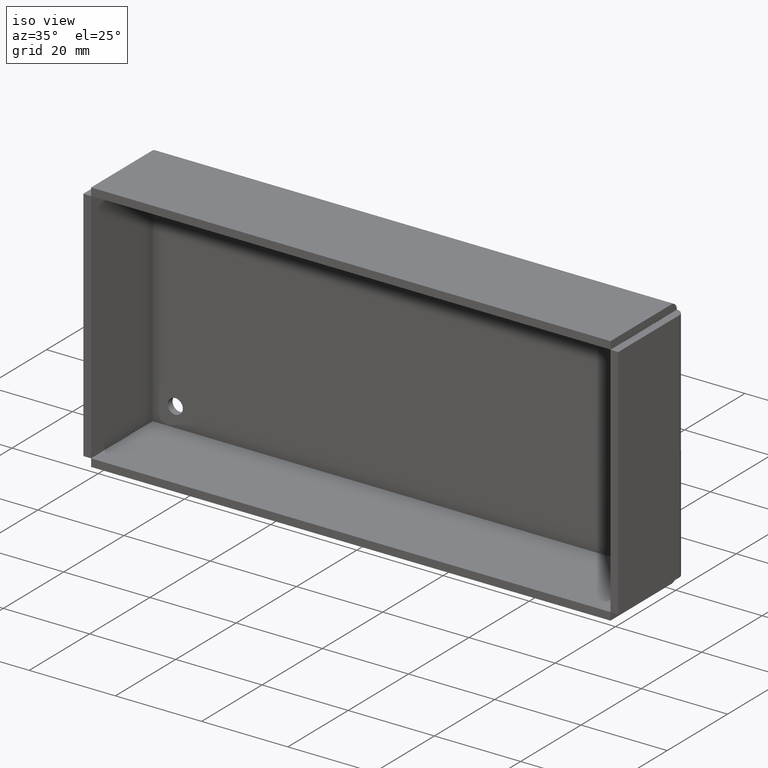
[diagram: clean part render]
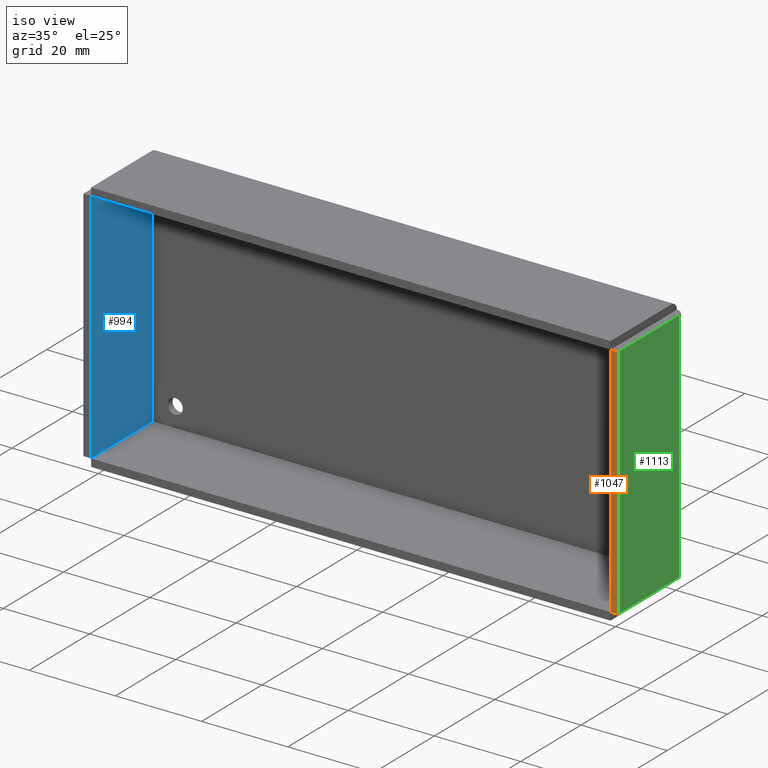
[diagram: same view with three faces highlighted in distinct colors, each labeled with its STEP entity id]
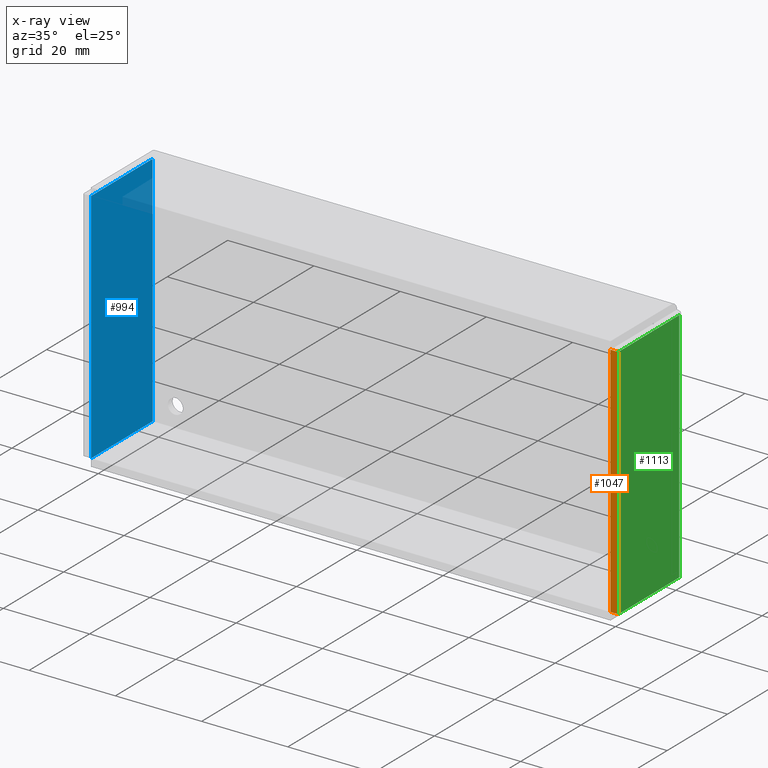
[diagram: x-ray of the same camera — body ghosted, the three highlighted faces saturated]
A machine part, iso view with three faces highlighted in distinct colors.
The next image is the same camera in x-ray (body ghosted, the three faces saturated) — at least one of them is partly hidden behind the body in this view.
Their STEP definitions:

[orange] entity #1047 — the highlighted face is a freeform B-spline surface patch.
#1012=CARTESIAN_POINT('',(60.160090042073932,-22.0,-30.247249893399331));
#1013=CARTESIAN_POINT('',(62.139909233729647,-22.0,-30.247249893399331));
#1014=CARTESIAN_POINT('',(60.160090042073932,-22.0,30.247251368614290));
#1015=CARTESIAN_POINT('',(62.139909233729647,-22.0,30.247251368614290));
#1016=B_SPLINE_SURFACE_WITH_KNOTS('',1,1,((#1012,#1014),(#1013,#1015)),.UNSPECIFIED.,.F.,.F.,.U.,(2,2),(2,2),(0.0,1.979819191655714),(0.0,60.494501262013607),.UNSPECIFIED.);
#1017=CARTESIAN_POINT('',(62.049999999999997,-22.0,-27.500000000000000));
#1018=VERTEX_POINT('',#1017);
#1019=CARTESIAN_POINT('',(62.049999999999997,-22.0,27.500000000000000));
#1020=VERTEX_POINT('',#1019);
#1021=CARTESIAN_POINT('',(62.049999999999997,-22.0,-27.500000000000000));
#1022=CARTESIAN_POINT('',(62.049999999999997,-22.0,27.500000000000000));
#1023=QUASI_UNIFORM_CURVE('',1,(#1021,#1022),.UNSPECIFIED.,.F.,.U.);
#1024=EDGE_CURVE('',#1018,#1020,#1023,.T.);
#1025=ORIENTED_EDGE('',*,*,#1024,.T.);
#1026=CARTESIAN_POINT('',(60.250000000000000,-22.0,27.500000000000000));
#1027=VERTEX_POINT('',#1026);
#1028=CARTESIAN_POINT('',(62.049999999999997,-22.0,27.500000000000000));
#1029=CARTESIAN_POINT('',(60.250000000000000,-22.0,27.500000000000000));
#1030=QUASI_UNIFORM_CURVE('',1,(#1028,#1029),.UNSPECIFIED.,.F.,.U.);
#1031=EDGE_CURVE('',#1020,#1027,#1030,.T.);
#1032=ORIENTED_EDGE('',*,*,#1031,.T.);
#1033=CARTESIAN_POINT('',(60.250000000000000,-22.0,-27.500000000000000));
#1034=VERTEX_POINT('',#1033);
#1035=CARTESIAN_POINT('',(60.250000000000000,-22.0,27.500000000000000));
#1036=CARTESIAN_POINT('',(60.250000000000000,-22.0,-27.500000000000000));
#1037=QUASI_UNIFORM_CURVE('',1,(#1035,#1036),.UNSPECIFIED.,.F.,.U.);
#1038=EDGE_CURVE('',#1027,#1034,#1037,.T.);
#1039=ORIENTED_EDGE('',*,*,#1038,.T.);
#1040=CARTESIAN_POINT('',(60.250000000000000,-22.0,-27.500000000000000));
#1041=CARTESIAN_POINT('',(62.049999999999997,-22.0,-27.500000000000000));
#1042=QUASI_UNIFORM_CURVE('',1,(#1040,#1041),.UNSPECIFIED.,.F.,.U.);
#1043=EDGE_CURVE('',#1034,#1018,#1042,.T.);
#1044=ORIENTED_EDGE('',*,*,#1043,.T.);
#1045=EDGE_LOOP('',(#1025,#1032,#1039,#1044));
#1046=FACE_OUTER_BOUND('',#1045,.T.);
#1047=ADVANCED_FACE('',(#1046),#1016,.T.);

[blue] entity #994 — the highlighted face is a freeform B-spline surface patch.
#901=CARTESIAN_POINT('',(-60.250000000000000,-22.0,-27.500000000000000));
#902=VERTEX_POINT('',#901);
#908=CARTESIAN_POINT('',(-60.250000000000000,-22.0,27.500000000000000));
#909=VERTEX_POINT('',#908);
#910=CARTESIAN_POINT('',(-60.250000000000000,-22.0,-27.500000000000000));
#911=CARTESIAN_POINT('',(-60.250000000000000,-22.0,27.500000000000000));
#912=QUASI_UNIFORM_CURVE('',1,(#910,#911),.UNSPECIFIED.,.F.,.U.);
#913=EDGE_CURVE('',#902,#909,#912,.T.);
#955=CARTESIAN_POINT('',(-60.250000000000000,-1.600000000000045,27.500000000000000));
#956=VERTEX_POINT('',#955);
#965=CARTESIAN_POINT('',(-60.250000000000000,-22.0,27.500000000000000));
#966=CARTESIAN_POINT('',(-60.250000000000000,-1.600000000000045,27.500000000000000));
#967=QUASI_UNIFORM_CURVE('',1,(#965,#966),.UNSPECIFIED.,.F.,.U.);
#968=EDGE_CURVE('',#909,#956,#967,.T.);
#973=CARTESIAN_POINT('',(-60.250000000000000,-23.018979960460840,-30.247249893399331));
#974=CARTESIAN_POINT('',(-60.250000000000000,-23.018979960460840,30.247251368614290));
#975=CARTESIAN_POINT('',(-60.250000000000000,-0.581019492368567,-30.247249893399331));
#976=CARTESIAN_POINT('',(-60.250000000000000,-0.581019492368567,30.247251368614290));
#977=B_SPLINE_SURFACE_WITH_KNOTS('',1,1,((#973,#975),(#974,#976)),.UNSPECIFIED.,.F.,.F.,.U.,(2,2),(2,2),(0.0,60.494501262013607),(0.0,22.437960468092271),.UNSPECIFIED.);
#978=CARTESIAN_POINT('',(-60.250000000000000,-1.600000000000045,-27.500000000000000));
#979=VERTEX_POINT('',#978);
#980=CARTESIAN_POINT('',(-60.250000000000000,-1.600000000000045,27.500000000000000));
#981=CARTESIAN_POINT('',(-60.250000000000000,-1.600000000000045,-27.500000000000000));
#982=QUASI_UNIFORM_CURVE('',1,(#980,#981),.UNSPECIFIED.,.F.,.U.);
#983=EDGE_CURVE('',#956,#979,#982,.T.);
#984=ORIENTED_EDGE('',*,*,#983,.F.);
#985=ORIENTED_EDGE('',*,*,#968,.F.);
#986=ORIENTED_EDGE('',*,*,#913,.F.);
#987=CARTESIAN_POINT('',(-60.250000000000000,-22.0,-27.500000000000000));
#988=CARTESIAN_POINT('',(-60.250000000000000,-1.600000000000045,-27.500000000000000));
#989=QUASI_UNIFORM_CURVE('',1,(#987,#988),.UNSPECIFIED.,.F.,.U.);
#990=EDGE_CURVE('',#902,#979,#989,.T.);
#991=ORIENTED_EDGE('',*,*,#990,.T.);
#992=EDGE_LOOP('',(#984,#985,#986,#991));
#993=FACE_OUTER_BOUND('',#992,.T.);
#994=ADVANCED_FACE('',(#993),#977,.F.);

[green] entity #1113 — the highlighted face is a freeform B-spline surface patch.
#788=CARTESIAN_POINT('',(62.049999999999997,-1.800000000000025,-27.500000000000000));
#789=VERTEX_POINT('',#788);
#810=CARTESIAN_POINT('',(62.049999999999997,-1.800000000000025,27.500000000000000));
#811=VERTEX_POINT('',#810);
#825=CARTESIAN_POINT('',(62.049999999999997,-1.800000000000025,-27.500000000000000));
#826=CARTESIAN_POINT('',(62.049999999999997,-1.800000000000025,27.500000000000000));
#827=QUASI_UNIFORM_CURVE('',1,(#825,#826),.UNSPECIFIED.,.F.,.U.);
#828=EDGE_CURVE('',#789,#811,#827,.T.);
#1017=CARTESIAN_POINT('',(62.049999999999997,-22.0,-27.500000000000000));
#1018=VERTEX_POINT('',#1017);
#1019=CARTESIAN_POINT('',(62.049999999999997,-22.0,27.500000000000000));
#1020=VERTEX_POINT('',#1019);
#1021=CARTESIAN_POINT('',(62.049999999999997,-22.0,-27.500000000000000));
#1022=CARTESIAN_POINT('',(62.049999999999997,-22.0,27.500000000000000));
#1023=QUASI_UNIFORM_CURVE('',1,(#1021,#1022),.UNSPECIFIED.,.F.,.U.);
#1024=EDGE_CURVE('',#1018,#1020,#1023,.T.);
#1061=CARTESIAN_POINT('',(62.049999999999997,-22.0,-27.500000000000000));
#1062=CARTESIAN_POINT('',(62.049999999999997,-1.800000000000025,-27.500000000000000));
#1063=QUASI_UNIFORM_CURVE('',1,(#1061,#1062),.UNSPECIFIED.,.F.,.U.);
#1064=EDGE_CURVE('',#1018,#789,#1063,.T.);
#1080=CARTESIAN_POINT('',(62.049999999999997,-22.0,27.500000000000000));
#1081=CARTESIAN_POINT('',(62.049999999999997,-1.800000000000025,27.500000000000000));
#1082=QUASI_UNIFORM_CURVE('',1,(#1080,#1081),.UNSPECIFIED.,.F.,.U.);
#1083=EDGE_CURVE('',#1020,#811,#1082,.T.);
#1102=CARTESIAN_POINT('',(62.049999999999997,-23.008989960848481,-30.247249893399331));
#1103=CARTESIAN_POINT('',(62.049999999999997,-23.008989960848481,30.247251368614290));
#1104=CARTESIAN_POINT('',(62.049999999999997,-0.791009497345323,-30.247249893399331));
#1105=CARTESIAN_POINT('',(62.049999999999997,-0.791009497345323,30.247251368614290));
#1106=B_SPLINE_SURFACE_WITH_KNOTS('',1,1,((#1102,#1104),(#1103,#1105)),.UNSPECIFIED.,.F.,.F.,.U.,(2,2),(2,2),(0.0,60.494501262013607),(0.0,22.217980463503149),.UNSPECIFIED.);
#1107=ORIENTED_EDGE('',*,*,#1064,.T.);
#1108=ORIENTED_EDGE('',*,*,#828,.T.);
#1109=ORIENTED_EDGE('',*,*,#1083,.F.);
#1110=ORIENTED_EDGE('',*,*,#1024,.F.);
#1111=EDGE_LOOP('',(#1107,#1108,#1109,#1110));
#1112=FACE_OUTER_BOUND('',#1111,.T.);
#1113=ADVANCED_FACE('',(#1112),#1106,.F.);